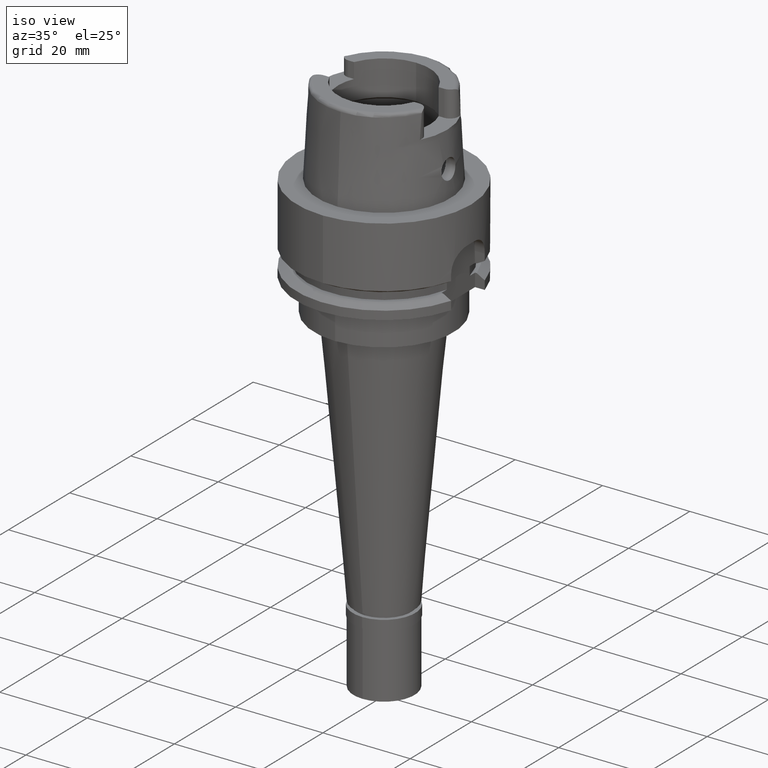
[diagram: clean part render]
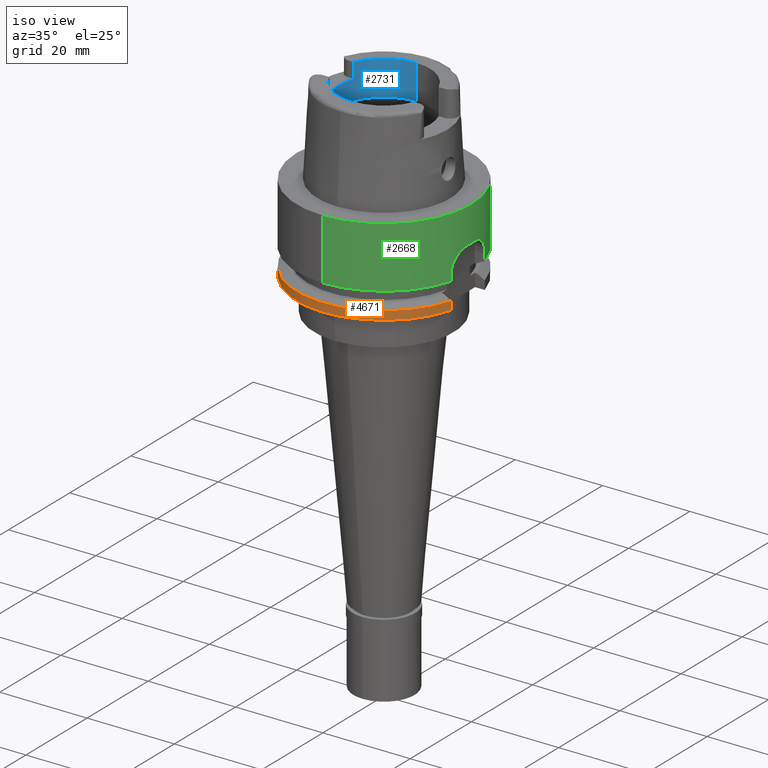
[diagram: same view with three faces highlighted in distinct colors, each labeled with its STEP entity id]
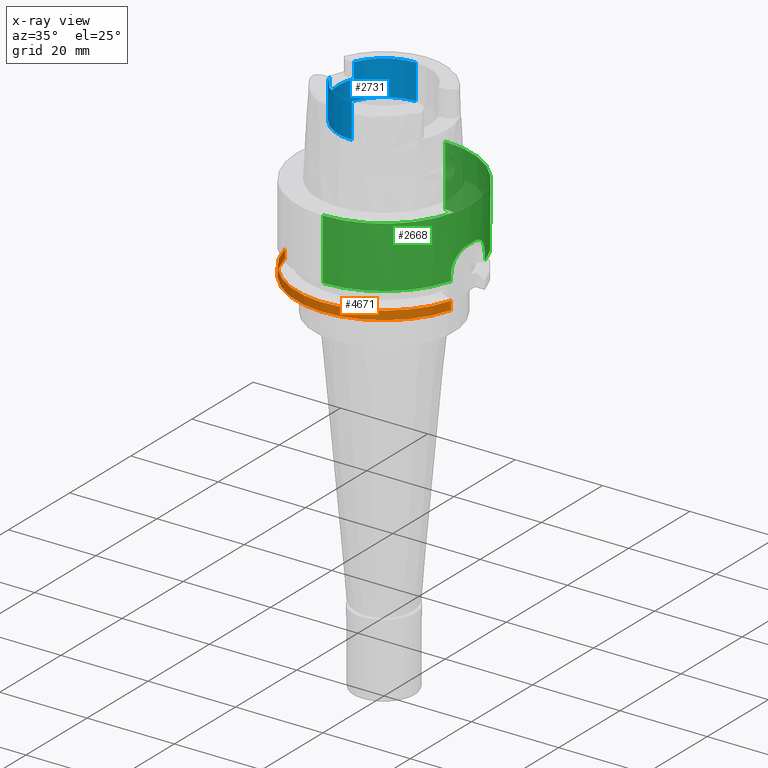
[diagram: x-ray of the same camera — body ghosted, the three highlighted faces saturated]
A machine part, iso view with three faces highlighted in distinct colors.
The next image is the same camera in x-ray (body ghosted, the three faces saturated) — at least one of them is partly hidden behind the body in this view.
Their STEP definitions:

[orange] entity #4671 — the highlighted cylindrical surface (partial cylindrical patch) has radius 20 mm, axis along (0, 0, -1).
#34 = CIRCLE ( 'NONE', #1382, 20.00000000000000355 ) ;
#233 = DIRECTION ( 'NONE',  ( 0.0000000000000000000, 0.0000000000000000000, -1.000000000000000000 ) ) ;
#630 = ORIENTED_EDGE ( 'NONE', *, *, #1420, .T. ) ;
#983 = VERTEX_POINT ( 'NONE', #2660 ) ;
#1083 = ORIENTED_EDGE ( 'NONE', *, *, #1352, .T. ) ;
#1172 = VERTEX_POINT ( 'NONE', #4121 ) ;
#1352 = EDGE_CURVE ( 'NONE', #983, #1172, #4506, .T. ) ;
#1354 = CARTESIAN_POINT ( 'NONE',  ( 19.22888438492999796, -5.500000482831000959, -18.02072998819999938 ) ) ;
#1361 = LINE ( 'NONE', #2976, #2925 ) ;
#1378 = DIRECTION ( 'NONE',  ( 6.977523736092768769E-08, 2.439442512100919785E-07, -0.9999999999999678035 ) ) ;
#1382 = AXIS2_PLACEMENT_3D ( 'NONE', #2723, #233, #4763 ) ;
#1420 = EDGE_CURVE ( 'NONE', #1584, #1720, #34, .T. ) ;
#1518 = CARTESIAN_POINT ( 'NONE',  ( -19.48717526991000071, -4.499999999998999911, -18.02072594216000212 ) ) ;
#1584 = VERTEX_POINT ( 'NONE', #4087 ) ;
#1630 = AXIS2_PLACEMENT_3D ( 'NONE', #4513, #1681, #3302 ) ;
#1640 = EDGE_CURVE ( 'NONE', #1584, #1172, #1749, .T. ) ;
#1681 = DIRECTION ( 'NONE',  ( 0.0000000000000000000, 0.0000000000000000000, -1.000000000000000000 ) ) ;
#1720 = VERTEX_POINT ( 'NONE', #1518 ) ;
#1749 = LINE ( 'NONE', #1354, #4427 ) ;
#1851 = ORIENTED_EDGE ( 'NONE', *, *, #1640, .F. ) ;
#2015 = ORIENTED_EDGE ( 'NONE', *, *, #4002, .F. ) ;
#2660 = CARTESIAN_POINT ( 'NONE',  ( -19.48717526991000071, -4.500000000000000000, -20.00000000000000000 ) ) ;
#2723 = CARTESIAN_POINT ( 'NONE',  ( 0.0000000000000000000, 1.010206699502999904E-14, -18.02072594216000212 ) ) ;
#2921 = CARTESIAN_POINT ( 'NONE',  ( 0.0000000000000000000, 1.543667290324999758E-14, -20.00000000000000000 ) ) ;
#2925 = VECTOR ( 'NONE', #4584, 1000.000000000000000 ) ;
#2976 = CARTESIAN_POINT ( 'NONE',  ( -19.48717526991000071, -4.500000000000000000, -20.00000000000000000 ) ) ;
#3037 = EDGE_LOOP ( 'NONE', ( #2015, #1083, #1851, #630 ) ) ;
#3302 = DIRECTION ( 'NONE',  ( 0.0000000000000000000, -1.000000000000000000, 0.0000000000000000000 ) ) ;
#3348 = FACE_OUTER_BOUND ( 'NONE', #3037, .T. ) ;
#3700 = CYLINDRICAL_SURFACE ( 'NONE', #1630, 20.00000000000000000 ) ;
#4002 = EDGE_CURVE ( 'NONE', #983, #1720, #1361, .T. ) ;
#4087 = CARTESIAN_POINT ( 'NONE',  ( 19.22888452303000051, -5.499999999998999911, -18.02072594216000212 ) ) ;
#4121 = CARTESIAN_POINT ( 'NONE',  ( 19.22888452303000051, -5.500000000000000000, -20.00000000000000000 ) ) ;
#4319 = DIRECTION ( 'NONE',  ( 0.0000000000000000000, -1.000000000000000000, 0.0000000000000000000 ) ) ;
#4427 = VECTOR ( 'NONE', #1378, 1000.000000000000000 ) ;
#4506 = CIRCLE ( 'NONE', #5176, 20.00000000000000000 ) ;
#4513 = CARTESIAN_POINT ( 'NONE',  ( 0.0000000000000000000, 1.543667290324999758E-14, 26.05000000000000071 ) ) ;
#4536 = DIRECTION ( 'NONE',  ( 0.0000000000000000000, 0.0000000000000000000, 1.000000000000000000 ) ) ;
#4584 = DIRECTION ( 'NONE',  ( 2.871932698541000019E-13, 1.135310894891999952E-13, 1.000000000000000000 ) ) ;
#4671 = ADVANCED_FACE ( 'NONE', ( #3348 ), #3700, .T. ) ;
#4763 = DIRECTION ( 'NONE',  ( 0.9614442261514726251, -0.2749999999999924727, 0.0000000000000000000 ) ) ;
#5176 = AXIS2_PLACEMENT_3D ( 'NONE', #2921, #4536, #4319 ) ;

[blue] entity #2731 — the highlighted cylindrical surface (partial cylindrical patch) has radius 10.5 mm, axis along (0, 0, -1).
#95 = LINE ( 'NONE', #3651, #3540 ) ;
#160 = EDGE_CURVE ( 'NONE', #1052, #1427, #1665, .T. ) ;
#237 = VECTOR ( 'NONE', #4203, 1000.000000000000000 ) ;
#251 = ORIENTED_EDGE ( 'NONE', *, *, #2397, .T. ) ;
#355 = AXIS2_PLACEMENT_3D ( 'NONE', #1373, #4911, #1745 ) ;
#566 = CYLINDRICAL_SURFACE ( 'NONE', #648, 10.50000000000000000 ) ;
#648 = AXIS2_PLACEMENT_3D ( 'NONE', #4224, #3376, #4979 ) ;
#774 = EDGE_CURVE ( 'NONE', #2619, #1611, #95, .T. ) ;
#813 = CIRCLE ( 'NONE', #3352, 10.50000000000000000 ) ;
#846 = CARTESIAN_POINT ( 'NONE',  ( -9.697905701747998819, -4.025000000000000355, 20.00000000000000000 ) ) ;
#920 = EDGE_CURVE ( 'NONE', #2263, #2170, #3784, .T. ) ;
#954 = ORIENTED_EDGE ( 'NONE', *, *, #4523, .T. ) ;
#1052 = VERTEX_POINT ( 'NONE', #1488 ) ;
#1077 = CIRCLE ( 'NONE', #3275, 10.49999999999999822 ) ;
#1106 = ORIENTED_EDGE ( 'NONE', *, *, #920, .F. ) ;
#1272 = CARTESIAN_POINT ( 'NONE',  ( -9.697905701747998819, 4.025000000000000355, 16.50000000000000000 ) ) ;
#1299 = CARTESIAN_POINT ( 'NONE',  ( 0.0000000000000000000, -10.50000000000000000, 11.99735026918999914 ) ) ;
#1363 = DIRECTION ( 'NONE',  ( 0.0000000000000000000, 4.506013014787999900E-14, 1.000000000000000000 ) ) ;
#1373 = CARTESIAN_POINT ( 'NONE',  ( 0.0000000000000000000, 1.543667290324999758E-14, 20.00000000000000000 ) ) ;
#1412 = LINE ( 'NONE', #3031, #4870 ) ;
#1427 = VERTEX_POINT ( 'NONE', #1857 ) ;
#1458 = CARTESIAN_POINT ( 'NONE',  ( 0.0000000000000000000, 1.363617650911000050E-14, 11.99735026918999914 ) ) ;
#1488 = CARTESIAN_POINT ( 'NONE',  ( 0.0000000000000000000, -10.50000000000000000, 11.99735026918999914 ) ) ;
#1544 = DIRECTION ( 'NONE',  ( 0.0000000000000000000, 0.0000000000000000000, 1.000000000000000000 ) ) ;
#1611 = VERTEX_POINT ( 'NONE', #4037 ) ;
#1665 = LINE ( 'NONE', #1299, #5051 ) ;
#1724 = CARTESIAN_POINT ( 'NONE',  ( 0.0000000000000000000, 10.50000000000000000, 11.99735026918999914 ) ) ;
#1745 = DIRECTION ( 'NONE',  ( 0.0000000000000000000, 1.000000000000000000, 0.0000000000000000000 ) ) ;
#1857 = CARTESIAN_POINT ( 'NONE',  ( 0.0000000000000000000, -10.50000000000000000, 20.00000000000000000 ) ) ;
#1990 = VERTEX_POINT ( 'NONE', #1724 ) ;
#2130 = CARTESIAN_POINT ( 'NONE',  ( 0.0000000000000000000, 1.543667290324999758E-14, 16.50000000000000000 ) ) ;
#2170 = VERTEX_POINT ( 'NONE', #2798 ) ;
#2263 = VERTEX_POINT ( 'NONE', #846 ) ;
#2397 = EDGE_CURVE ( 'NONE', #4569, #1611, #3146, .T. ) ;
#2414 = CIRCLE ( 'NONE', #4686, 10.49999999999999822 ) ;
#2454 = DIRECTION ( 'NONE',  ( 0.0000000000000000000, 0.0000000000000000000, 1.000000000000000000 ) ) ;
#2581 = CARTESIAN_POINT ( 'NONE',  ( -9.697905701747998819, -4.025000000000000355, 20.00000000000000000 ) ) ;
#2619 = VERTEX_POINT ( 'NONE', #1272 ) ;
#2731 = ADVANCED_FACE ( 'NONE', ( #4639 ), #566, .F. ) ;
#2774 = EDGE_CURVE ( 'NONE', #2619, #2170, #1077, .T. ) ;
#2798 = CARTESIAN_POINT ( 'NONE',  ( -9.697905701747998819, -4.025000000000000355, 16.50000000000000000 ) ) ;
#2811 = EDGE_CURVE ( 'NONE', #1990, #4569, #1412, .T. ) ;
#3006 = DIRECTION ( 'NONE',  ( 0.0000000000000000000, 0.0000000000000000000, 1.000000000000000000 ) ) ;
#3023 = ORIENTED_EDGE ( 'NONE', *, *, #2811, .T. ) ;
#3031 = CARTESIAN_POINT ( 'NONE',  ( 0.0000000000000000000, 10.50000000000000000, 11.99735026918999914 ) ) ;
#3051 = DIRECTION ( 'NONE',  ( 0.0000000000000000000, 0.0000000000000000000, -1.000000000000000000 ) ) ;
#3146 = CIRCLE ( 'NONE', #355, 10.50000000000000000 ) ;
#3172 = ORIENTED_EDGE ( 'NONE', *, *, #3822, .T. ) ;
#3275 = AXIS2_PLACEMENT_3D ( 'NONE', #2130, #3006, #3351 ) ;
#3351 = DIRECTION ( 'NONE',  ( -0.9236100668331782559, 0.3833333333332911153, 0.0000000000000000000 ) ) ;
#3352 = AXIS2_PLACEMENT_3D ( 'NONE', #1458, #3051, #4269 ) ;
#3376 = DIRECTION ( 'NONE',  ( 0.0000000000000000000, 0.0000000000000000000, -1.000000000000000000 ) ) ;
#3540 = VECTOR ( 'NONE', #2454, 1000.000000000000000 ) ;
#3619 = DIRECTION ( 'NONE',  ( -0.9236100668331782559, -0.3833333333332911153, 0.0000000000000000000 ) ) ;
#3651 = CARTESIAN_POINT ( 'NONE',  ( -9.697905701747998819, 4.025000000000000355, 16.50000000000000000 ) ) ;
#3784 = LINE ( 'NONE', #2581, #237 ) ;
#3822 = EDGE_CURVE ( 'NONE', #1052, #1990, #813, .T. ) ;
#4037 = CARTESIAN_POINT ( 'NONE',  ( -9.697905701747998819, 4.025000000000000355, 20.00000000000000000 ) ) ;
#4071 = CARTESIAN_POINT ( 'NONE',  ( 0.0000000000000000000, 10.50000000000000000, 20.00000000000000000 ) ) ;
#4104 = EDGE_LOOP ( 'NONE', ( #1106, #954, #4886, #3172, #3023, #251, #4759, #4491 ) ) ;
#4203 = DIRECTION ( 'NONE',  ( -1.015061051086000057E-14, 0.0000000000000000000, -1.000000000000000000 ) ) ;
#4224 = CARTESIAN_POINT ( 'NONE',  ( 0.0000000000000000000, 1.543667290324999758E-14, 26.05000000000000071 ) ) ;
#4269 = DIRECTION ( 'NONE',  ( 0.0000000000000000000, -1.000000000000000000, 0.0000000000000000000 ) ) ;
#4491 = ORIENTED_EDGE ( 'NONE', *, *, #2774, .T. ) ;
#4523 = EDGE_CURVE ( 'NONE', #2263, #1427, #2414, .T. ) ;
#4569 = VERTEX_POINT ( 'NONE', #4071 ) ;
#4639 = FACE_OUTER_BOUND ( 'NONE', #4104, .T. ) ;
#4686 = AXIS2_PLACEMENT_3D ( 'NONE', #4772, #1544, #3619 ) ;
#4759 = ORIENTED_EDGE ( 'NONE', *, *, #774, .F. ) ;
#4772 = CARTESIAN_POINT ( 'NONE',  ( 0.0000000000000000000, 1.543667290324999758E-14, 20.00000000000000000 ) ) ;
#4834 = DIRECTION ( 'NONE',  ( 0.0000000000000000000, -4.506013014787999900E-14, 1.000000000000000000 ) ) ;
#4870 = VECTOR ( 'NONE', #1363, 1000.000000000000000 ) ;
#4886 = ORIENTED_EDGE ( 'NONE', *, *, #160, .F. ) ;
#4911 = DIRECTION ( 'NONE',  ( 0.0000000000000000000, 0.0000000000000000000, 1.000000000000000000 ) ) ;
#4979 = DIRECTION ( 'NONE',  ( 0.0000000000000000000, -1.000000000000000000, 0.0000000000000000000 ) ) ;
#5051 = VECTOR ( 'NONE', #4834, 1000.000000000000000 ) ;

[green] entity #2668 — the highlighted cylindrical surface (partial cylindrical patch) has radius 20 mm, axis along (0, 0, -1).
#3 = CARTESIAN_POINT ( 'NONE',  ( 19.37438819454251515, 4.968981331610065943, -10.35901678339997645 ) ) ;
#5 = CARTESIAN_POINT ( 'NONE',  ( 19.32378822081918557, -5.157015763332991831, -10.77685397598820494 ) ) ;
#35 = CARTESIAN_POINT ( 'NONE',  ( 19.30814873047946278, 5.215510626097160873, -10.92456478975120504 ) ) ;
#55 = CARTESIAN_POINT ( 'NONE',  ( 19.64341734775709369, 3.759157193626918581, -8.942060455816395859 ) ) ;
#56 = CARTESIAN_POINT ( 'NONE',  ( 19.22888455207999669, 5.499999898428999501, -13.97927490900000080 ) ) ;
#108 = LINE ( 'NONE', #1286, #2719 ) ;
#165 = CARTESIAN_POINT ( 'NONE',  ( 19.75006768187282447, -3.152300324579869528, -8.547393473213741544 ) ) ;
#191 = CARTESIAN_POINT ( 'NONE',  ( 19.69786298772580579, -3.463279942955271640, -8.734041853009086864 ) ) ;
#219 = AXIS2_PLACEMENT_3D ( 'NONE', #834, #2844, #4072 ) ;
#252 = EDGE_CURVE ( 'NONE', #2816, #3621, #4298, .T. ) ;
#294 = CARTESIAN_POINT ( 'NONE',  ( 19.97498435543999662, 1.000000000000000000, -8.000000000000000000 ) ) ;
#319 = CARTESIAN_POINT ( 'NONE',  ( 19.60629991882707301, -3.947946776223751009, -9.099636447453219645 ) ) ;
#341 = DIRECTION ( 'NONE',  ( 0.9614442261514726251, 0.2749999999999924727, 0.0000000000000000000 ) ) ;
#347 = CARTESIAN_POINT ( 'NONE',  ( 19.55880979920604190, -4.177717557293585848, -9.313760926475668001 ) ) ;
#369 = EDGE_CURVE ( 'NONE', #3621, #3684, #4986, .T. ) ;
#373 = CARTESIAN_POINT ( 'NONE',  ( 19.54717881154443759, 4.231843806285925602, -9.368656200124942046 ) ) ;
#387 = CARTESIAN_POINT ( 'NONE',  ( 0.0000000000000000000, 1.543667290324999758E-14, -8.000000000000000000 ) ) ;
#400 = CARTESIAN_POINT ( 'NONE',  ( 19.31927554125320867, 5.173908272951318388, -10.81818178498428473 ) ) ;
#402 = CARTESIAN_POINT ( 'NONE',  ( 19.22888452303000761, -5.499999999999999112, -11.94439189503790466 ) ) ;
#428 = CARTESIAN_POINT ( 'NONE',  ( 19.94750265054872429, 1.548946625353125217, -7.999999999999998224 ) ) ;
#466 = CYLINDRICAL_SURFACE ( 'NONE', #219, 20.00000000000000000 ) ;
#472 = ORIENTED_EDGE ( 'NONE', *, *, #2096, .T. ) ;
#537 = CIRCLE ( 'NONE', #4846, 20.00000000000000355 ) ;
#548 = DIRECTION ( 'NONE',  ( 0.0000000000000000000, 0.0000000000000000000, -1.000000000000000000 ) ) ;
#565 = CARTESIAN_POINT ( 'NONE',  ( 19.79924970797953421, -2.829005952010215541, -8.386433423952727395 ) ) ;
#574 = DIRECTION ( 'NONE',  ( 0.0000000000000000000, 1.000000000000000000, 0.0000000000000000000 ) ) ;
#591 = CARTESIAN_POINT ( 'NONE',  ( 19.82412897297784227, -2.646045169958980647, -8.311778255061128107 ) ) ;
#666 = CARTESIAN_POINT ( 'NONE',  ( 19.97498435543999662, -1.000000000000000000, -8.000000000000000000 ) ) ;
#749 = VECTOR ( 'NONE', #2191, 1000.000000000000000 ) ;
#766 = CARTESIAN_POINT ( 'NONE',  ( 19.73181176401502412, 3.269800688285884771, -8.611531494186243307 ) ) ;
#795 = CARTESIAN_POINT ( 'NONE',  ( 19.80271555437556685, 2.802257396458175620, -8.376496063767739031 ) ) ;
#797 = CARTESIAN_POINT ( 'NONE',  ( 19.33343987542199116, -5.120819323139696344, -10.69159904264108008 ) ) ;
#801 = EDGE_CURVE ( 'NONE', #2895, #2930, #1849, .T. ) ;
#822 = CARTESIAN_POINT ( 'NONE',  ( 19.55058958275470360, 4.216034114112235720, -9.352421095808553630 ) ) ;
#834 = CARTESIAN_POINT ( 'NONE',  ( 0.0000000000000000000, 1.543667290324999758E-14, 26.05000000000000071 ) ) ;
#848 = CARTESIAN_POINT ( 'NONE',  ( 19.66595259486028269, 3.639708197369829534, -8.852604972239468850 ) ) ;
#948 = CARTESIAN_POINT ( 'NONE',  ( 0.0000000000000000000, -20.00000000000000000, 2.842170943039999687E-14 ) ) ;
#996 = CARTESIAN_POINT ( 'NONE',  ( 19.88657340472432722, -2.128521744545384564, -8.141174127915954628 ) ) ;
#1025 = ORIENTED_EDGE ( 'NONE', *, *, #4977, .F. ) ;
#1100 = CARTESIAN_POINT ( 'NONE',  ( 19.22888455207999669, 5.499999898428999501, -13.97927490900000080 ) ) ;
#1176 = CARTESIAN_POINT ( 'NONE',  ( 0.0000000000000000000, -20.00000000000000000, 4.263256414560999963E-14 ) ) ;
#1179 = CARTESIAN_POINT ( 'NONE',  ( 19.25965273699067737, 5.393015374543157492, -11.51384204047051973 ) ) ;
#1190 = CARTESIAN_POINT ( 'NONE',  ( 19.22888452303000051, -5.500000000000000000, -12.50000000000000000 ) ) ;
#1193 = ORIENTED_EDGE ( 'NONE', *, *, #369, .T. ) ;
#1206 = CARTESIAN_POINT ( 'NONE',  ( 19.53037130707301117, 4.309204805725075360, -9.449976948277296174 ) ) ;
#1208 = CARTESIAN_POINT ( 'NONE',  ( 19.56749878760233230, -4.136808821677538717, -9.273401578788352140 ) ) ;
#1233 = CARTESIAN_POINT ( 'NONE',  ( 19.22888452303000051, 5.499999999999999112, -12.22477767450763508 ) ) ;
#1235 = LINE ( 'NONE', #4765, #3149 ) ;
#1259 = CARTESIAN_POINT ( 'NONE',  ( 19.45403425829189104, 4.645501968449847752, -9.856618486522032541 ) ) ;
#1284 = CARTESIAN_POINT ( 'NONE',  ( 19.26926780385338844, 5.358523449145703665, -11.37062589925078626 ) ) ;
#1286 = CARTESIAN_POINT ( 'NONE',  ( 0.0000000000000000000, 20.00000000000000000, 2.842170943039999687E-14 ) ) ;
#1419 = CARTESIAN_POINT ( 'NONE',  ( 0.0000000000000000000, 1.543667290324999758E-14, 4.263256414560999963E-14 ) ) ;
#1482 = CARTESIAN_POINT ( 'NONE',  ( 19.86177198028481428, -2.346345507704530764, -8.205458714641451934 ) ) ;
#1506 = CARTESIAN_POINT ( 'NONE',  ( 19.58358607571208410, -4.059677680234496933, -9.200102150995521200 ) ) ;
#1565 = CARTESIAN_POINT ( 'NONE',  ( 19.69011979538656121, -3.507041824432302501, -8.763022894637767735 ) ) ;
#1580 = EDGE_CURVE ( 'NONE', #2567, #2930, #2737, .T. ) ;
#1618 = CARTESIAN_POINT ( 'NONE',  ( 19.76286317223778255, 3.073239668982341577, -8.505350716737437367 ) ) ;
#1671 = CARTESIAN_POINT ( 'NONE',  ( 19.71035955465800527, 3.396378701076609552, -8.688318090813437422 ) ) ;
#1761 = DIRECTION ( 'NONE',  ( 0.0000000000000000000, 0.0000000000000000000, 1.000000000000000000 ) ) ;
#1811 = CARTESIAN_POINT ( 'NONE',  ( 19.82047669593163519, -2.673243496814583953, -8.322638189075524551 ) ) ;
#1835 = CARTESIAN_POINT ( 'NONE',  ( 19.84876205538503058, -2.455396895395192125, -8.240630355209964009 ) ) ;
#1849 = CIRCLE ( 'NONE', #4219, 20.00000000000000355 ) ;
#1863 = ORIENTED_EDGE ( 'NONE', *, *, #5086, .F. ) ;
#1911 = ORIENTED_EDGE ( 'NONE', *, *, #252, .T. ) ;
#1914 = CARTESIAN_POINT ( 'NONE',  ( 19.56100790868513428, -4.167408501126094400, -9.303510949895644089 ) ) ;
#1944 = CARTESIAN_POINT ( 'NONE',  ( 19.56297054243317746, -4.158183768741362307, -9.294379057495527618 ) ) ;
#1972 = CARTESIAN_POINT ( 'NONE',  ( 19.63055863444332161, -3.825429343080176015, -8.995945353307421399 ) ) ;
#1998 = DIRECTION ( 'NONE',  ( -9.335120829406403131E-08, -3.263687556539141605E-07, -0.9999999999999423794 ) ) ;
#2023 = CARTESIAN_POINT ( 'NONE',  ( 19.34371990524743268, 5.082188777407422364, -10.59321086055394368 ) ) ;
#2025 = CARTESIAN_POINT ( 'NONE',  ( 19.69287179657276710, -3.491531764190564768, -8.752698147519648586 ) ) ;
#2073 = CARTESIAN_POINT ( 'NONE',  ( 19.23657657652016795, 5.474683009936600619, -11.94180794608985252 ) ) ;
#2091 = ORIENTED_EDGE ( 'NONE', *, *, #1580, .F. ) ;
#2096 = EDGE_CURVE ( 'NONE', #4204, #5013, #537, .T. ) ;
#2179 = CARTESIAN_POINT ( 'NONE',  ( 19.81802915263665810, -2.691371042508007960, -8.329944904972130360 ) ) ;
#2191 = DIRECTION ( 'NONE',  ( 0.0000000000000000000, 4.549132851063000272E-14, -1.000000000000000000 ) ) ;
#2205 = CARTESIAN_POINT ( 'NONE',  ( 19.72232671852873409, -3.321156288970464221, -8.644641456641281252 ) ) ;
#2305 = CARTESIAN_POINT ( 'NONE',  ( 19.69250427264395853, -3.493603579767303291, -8.754076722270859534 ) ) ;
#2329 = CARTESIAN_POINT ( 'NONE',  ( 19.35553016788671599, -5.037776128391355357, -10.51239473278588932 ) ) ;
#2331 = LINE ( 'NONE', #1100, #2923 ) ;
#2355 = CARTESIAN_POINT ( 'NONE',  ( 19.50148624231626115, 4.439276188996609029, -9.596741149152316908 ) ) ;
#2357 = CARTESIAN_POINT ( 'NONE',  ( 19.26028250093624195, -5.395673741350208275, -11.35512993866811371 ) ) ;
#2365 = B_SPLINE_CURVE_WITH_KNOTS ( 'NONE', 3,
 ( #2701, #3804, #5102, #3855, #996, #1482, #1835, #3398, #591, #1811, #2179, #3101, #565, #3450, #165, #3004, #2205, #3830, #5052, #191, #3425, #4790, #3642, #2025, #2305, #1565, #3529, #4430, #1972, #319, #4350, #1506, #3157, #1208, #1944, #1914, #5129, #347, #2781, #3244, #3185, #3553, #2329, #5189, #2416, #797, #4734, #3127, #4039, #5, #3586, #2357, #402, #3978 ),
 .UNSPECIFIED., .F., .F.,
 ( 4, 2, 2, 1, 1, 1, 2, 2, 2, 2, 1, 1, 1, 1, 1, 2, 2, 2, 2, 2, 1, 1, 1, 2, 2, 2, 2, 2, 1, 1, 1, 2, 2, 4 ),
 ( 0.0000000000000000000, 0.1250000000000925093, 0.1875000000001387224, 0.2187500000001618428, 0.2343750000001735834, 0.2421875000001792733, 0.2460937500001820211, 0.2500000000001847411, 0.3125000000002320366, 0.3437500000002553513, 0.3593750000002669531, 0.3671875000002726708, 0.3710937500002751688, 0.3730468750002763345, 0.3740234375002770562, 0.3745117187502772782, 0.3750000000002774447, 0.4375000000002126077, 0.4687500000001800782, 0.4843750000001642020, 0.4921875000001564304, 0.4960937500001526557, 0.4980468750001506018, 0.4990234375001497136, 0.5000000000001487699, 0.6250000000000823785, 0.6875000000000491829, 0.7187500000000325295, 0.7343750000000237588, 0.7421875000000195399, 0.7460937500000179856, 0.7480468750000176525, 0.7500000000000173195, 1.000000000000000000 ),
 .UNSPECIFIED. ) ;
#2416 = CARTESIAN_POINT ( 'NONE',  ( 19.33826880039561047, -5.102721284852711925, -10.65105757695662270 ) ) ;
#2463 = CARTESIAN_POINT ( 'NONE',  ( 19.89329510128545664, 2.145013587834520674, -8.101754134636035332 ) ) ;
#2553 = CARTESIAN_POINT ( 'NONE',  ( 0.0000000000000000000, 20.00000000000000000, 2.842170943039999687E-14 ) ) ;
#2567 = VERTEX_POINT ( 'NONE', #3727 ) ;
#2629 = DIRECTION ( 'NONE',  ( 0.0000000000000000000, 0.0000000000000000000, 1.000000000000000000 ) ) ;
#2668 = ADVANCED_FACE ( 'NONE', ( #2924 ), #466, .T. ) ;
#2701 = CARTESIAN_POINT ( 'NONE',  ( 19.97498435543999662, -1.000000000000000000, -8.000000000000000000 ) ) ;
#2719 = VECTOR ( 'NONE', #3267, 1000.000000000000000 ) ;
#2737 = B_SPLINE_CURVE_WITH_KNOTS ( 'NONE', 3,
 ( #3264, #1233, #2073, #1179, #1284, #3211, #3183, #35, #4402, #2831, #400, #4476, #3611, #2023, #3, #4872, #1259, #4456, #2355, #4006, #1206, #2859, #373, #822, #4428, #2779, #2802, #55, #848, #1671, #766, #1618, #4892, #3292, #795, #3242, #2463, #428, #4502 ),
 .UNSPECIFIED., .F., .F.,
 ( 4, 2, 2, 1, 1, 1, 1, 2, 2, 2, 2, 2, 1, 1, 2, 2, 2, 2, 2, 1, 2, 2, 4 ),
 ( 0.0000000000000000000, 0.1249999999999510392, 0.1874999999999265032, 0.2187499999999142908, 0.2343749999999079348, 0.2421874999999051314, 0.2460937499999034106, 0.2480468749999029665, 0.2499999999999024669, 0.3749999999999019673, 0.4374999999999021338, 0.4687499999999019118, 0.4843749999999021338, 0.4921874999999025779, 0.4960937499999029665, 0.4999999999999032996, 0.5624999999999152900, 0.6249999999999273914, 0.6874999999999393818, 0.7187499999999454880, 0.7343749999999483746, 0.7499999999999512612, 1.000000000000000000 ),
 .UNSPECIFIED. ) ;
#2779 = CARTESIAN_POINT ( 'NONE',  ( 19.57636077434077393, 4.096058062432208935, -9.231008306331434099 ) ) ;
#2781 = CARTESIAN_POINT ( 'NONE',  ( 19.50258987356185969, -4.440814174074203535, -9.576490243884636655 ) ) ;
#2802 = CARTESIAN_POINT ( 'NONE',  ( 19.59870672098418609, 3.986864991692018023, -9.130946759011775882 ) ) ;
#2816 = VERTEX_POINT ( 'NONE', #2553 ) ;
#2831 = CARTESIAN_POINT ( 'NONE',  ( 19.31785018270852206, 5.179250434213138021, -10.83146020384358366 ) ) ;
#2844 = DIRECTION ( 'NONE',  ( 0.0000000000000000000, 0.0000000000000000000, -1.000000000000000000 ) ) ;
#2859 = CARTESIAN_POINT ( 'NONE',  ( 19.54208649520453278, 4.255394358955884471, -9.393024476889040741 ) ) ;
#2895 = VERTEX_POINT ( 'NONE', #666 ) ;
#2923 = VECTOR ( 'NONE', #3588, 1000.000000000000227 ) ;
#2924 = FACE_OUTER_BOUND ( 'NONE', #4316, .T. ) ;
#2930 = VERTEX_POINT ( 'NONE', #294 ) ;
#2944 = EDGE_CURVE ( 'NONE', #4204, #2567, #2331, .T. ) ;
#3004 = CARTESIAN_POINT ( 'NONE',  ( 19.73928629156426595, -3.219242459443588000, -8.584494034111612493 ) ) ;
#3101 = CARTESIAN_POINT ( 'NONE',  ( 19.81658212541204733, -2.702021647201545473, -8.334284272960474027 ) ) ;
#3127 = CARTESIAN_POINT ( 'NONE',  ( 19.32558386707967557, -5.150273171863361199, -10.76065550155922956 ) ) ;
#3149 = VECTOR ( 'NONE', #1998, 1000.000000000000114 ) ;
#3157 = CARTESIAN_POINT ( 'NONE',  ( 19.57635034363546112, -4.094674932752772278, -9.232753233935065751 ) ) ;
#3180 = CARTESIAN_POINT ( 'NONE',  ( 19.22888452303000051, -5.499999999998999911, -13.97927405783999966 ) ) ;
#3183 = CARTESIAN_POINT ( 'NONE',  ( 19.29594961439740075, 5.260844250046678106, -11.04907114761905795 ) ) ;
#3185 = CARTESIAN_POINT ( 'NONE',  ( 19.39626597440157596, -4.881159778159820384, -10.21778494986767782 ) ) ;
#3196 = ORIENTED_EDGE ( 'NONE', *, *, #4933, .T. ) ;
#3211 = CARTESIAN_POINT ( 'NONE',  ( 19.28657492420625985, 5.295314599949730194, -11.15618988822538782 ) ) ;
#3242 = CARTESIAN_POINT ( 'NONE',  ( 19.80730337054795953, 2.769524427650016385, -8.362323385757935768 ) ) ;
#3244 = CARTESIAN_POINT ( 'NONE',  ( 19.45508985667163060, -4.643627919327275144, -9.842632388975317781 ) ) ;
#3264 = CARTESIAN_POINT ( 'NONE',  ( 19.22888452303000051, 5.500000000000000000, -12.50000000000000000 ) ) ;
#3267 = DIRECTION ( 'NONE',  ( 0.0000000000000000000, -4.574547001069000145E-14, -1.000000000000000000 ) ) ;
#3292 = CARTESIAN_POINT ( 'NONE',  ( 19.79292853787436712, 2.870973961517776285, -8.407216977344923237 ) ) ;
#3297 = AXIS2_PLACEMENT_3D ( 'NONE', #1419, #548, #574 ) ;
#3398 = CARTESIAN_POINT ( 'NONE',  ( 19.83251768747857469, -2.582538949086697233, -8.287137072048723851 ) ) ;
#3425 = CARTESIAN_POINT ( 'NONE',  ( 19.69518156564609157, -3.478484172201601332, -8.744049556565625991 ) ) ;
#3450 = CARTESIAN_POINT ( 'NONE',  ( 19.78083687765314735, -2.955267636968208489, -8.444274585361519314 ) ) ;
#3503 = DIRECTION ( 'NONE',  ( 0.0000000000000000000, -1.000000000000000000, 0.0000000000000000000 ) ) ;
#3526 = ORIENTED_EDGE ( 'NONE', *, *, #801, .T. ) ;
#3529 = CARTESIAN_POINT ( 'NONE',  ( 19.67776081537650512, -3.576150304528646018, -8.807391548428219252 ) ) ;
#3553 = CARTESIAN_POINT ( 'NONE',  ( 19.37872903748909437, -4.949291390665454315, -10.33899547509192907 ) ) ;
#3586 = CARTESIAN_POINT ( 'NONE',  ( 19.32356905015351245, -5.157838959567653703, -10.77883802536317148 ) ) ;
#3588 = DIRECTION ( 'NONE',  ( -1.963880633277989795E-08, 6.866245508930962446E-08, 0.9999999999999973355 ) ) ;
#3611 = CARTESIAN_POINT ( 'NONE',  ( 19.32083712209427873, 5.168052201873403639, -10.80372376177877314 ) ) ;
#3621 = VERTEX_POINT ( 'NONE', #1176 ) ;
#3642 = CARTESIAN_POINT ( 'NONE',  ( 19.69325742030598292, -3.489356284146566622, -8.751252609717051101 ) ) ;
#3684 = VERTEX_POINT ( 'NONE', #4034 ) ;
#3727 = CARTESIAN_POINT ( 'NONE',  ( 19.22888452303000051, 5.500000000000000000, -12.50000000000000000 ) ) ;
#3738 = VERTEX_POINT ( 'NONE', #3180 ) ;
#3804 = CARTESIAN_POINT ( 'NONE',  ( 19.96141059528141781, -1.271135646755005677, -8.000000000000000000 ) ) ;
#3830 = CARTESIAN_POINT ( 'NONE',  ( 19.71365006011778576, -3.372487405428365115, -8.675839264552720920 ) ) ;
#3855 = CARTESIAN_POINT ( 'NONE',  ( 19.90148312053728219, -1.983686740089123823, -8.106400823173725456 ) ) ;
#3978 = CARTESIAN_POINT ( 'NONE',  ( 19.22888452303000051, -5.500000000000000000, -12.50000000000000000 ) ) ;
#4006 = CARTESIAN_POINT ( 'NONE',  ( 19.52061580295159970, 4.353396961917777475, -9.498898205557379626 ) ) ;
#4034 = CARTESIAN_POINT ( 'NONE',  ( 0.0000000000000000000, -20.00000000000000000, -13.97927405783999966 ) ) ;
#4039 = CARTESIAN_POINT ( 'NONE',  ( 19.32450405234231638, -5.154327359260659769, -10.77038256577791842 ) ) ;
#4061 = DIRECTION ( 'NONE',  ( 0.0000000000000000000, 0.0000000000000000000, 1.000000000000000000 ) ) ;
#4072 = DIRECTION ( 'NONE',  ( 0.0000000000000000000, -1.000000000000000000, 0.0000000000000000000 ) ) ;
#4134 = ORIENTED_EDGE ( 'NONE', *, *, #4967, .F. ) ;
#4204 = VERTEX_POINT ( 'NONE', #56 ) ;
#4219 = AXIS2_PLACEMENT_3D ( 'NONE', #387, #1761, #5010 ) ;
#4250 = CIRCLE ( 'NONE', #5085, 20.00000000000000000 ) ;
#4298 = CIRCLE ( 'NONE', #3297, 20.00000000000000000 ) ;
#4316 = EDGE_LOOP ( 'NONE', ( #3526, #2091, #4623, #472, #1863, #1911, #1193, #3196, #1025, #4134 ) ) ;
#4350 = CARTESIAN_POINT ( 'NONE',  ( 19.59758911859629293, -3.991323908915184848, -9.137590959578149707 ) ) ;
#4402 = CARTESIAN_POINT ( 'NONE',  ( 19.31456378290192788, 5.191553160485575802, -10.86246611052810707 ) ) ;
#4428 = CARTESIAN_POINT ( 'NONE',  ( 19.55262815819665079, 4.206560231076517553, -9.342777017393709471 ) ) ;
#4430 = CARTESIAN_POINT ( 'NONE',  ( 19.64423286475271269, -3.753960927275207027, -8.940340451240164299 ) ) ;
#4456 = CARTESIAN_POINT ( 'NONE',  ( 19.48924179870268603, 4.493187827705320103, -9.661967863586884420 ) ) ;
#4476 = CARTESIAN_POINT ( 'NONE',  ( 19.32022953616849392, 5.170331358467291416, -10.80933174751684334 ) ) ;
#4495 = VERTEX_POINT ( 'NONE', #1190 ) ;
#4502 = CARTESIAN_POINT ( 'NONE',  ( 19.97498435543999662, 1.000000000000000000, -8.000000000000000000 ) ) ;
#4610 = CARTESIAN_POINT ( 'NONE',  ( 0.0000000000000000000, 1.047199923064999921E-14, -13.97927405783999966 ) ) ;
#4623 = ORIENTED_EDGE ( 'NONE', *, *, #2944, .F. ) ;
#4734 = CARTESIAN_POINT ( 'NONE',  ( 19.32814590696887436, -5.140661198078421812, -10.73782006796878186 ) ) ;
#4765 = CARTESIAN_POINT ( 'NONE',  ( 19.22888452303000051, -5.500000000000000000, -12.50000000000000000 ) ) ;
#4790 = CARTESIAN_POINT ( 'NONE',  ( 19.69383547139038981, -3.486093573305517168, -8.749086689143920736 ) ) ;
#4846 = AXIS2_PLACEMENT_3D ( 'NONE', #5071, #4061, #341 ) ;
#4872 = CARTESIAN_POINT ( 'NONE',  ( 19.43259695192461578, 4.734475810383234062, -9.984975962784744752 ) ) ;
#4892 = CARTESIAN_POINT ( 'NONE',  ( 19.77810714989596974, 2.973287712629881785, -8.454509563930937333 ) ) ;
#4933 = EDGE_CURVE ( 'NONE', #3684, #3738, #4250, .T. ) ;
#4967 = EDGE_CURVE ( 'NONE', #2895, #4495, #2365, .T. ) ;
#4977 = EDGE_CURVE ( 'NONE', #4495, #3738, #1235, .T. ) ;
#4986 = LINE ( 'NONE', #948, #749 ) ;
#5010 = DIRECTION ( 'NONE',  ( 0.9987492177719088371, -0.04999999999999998890, 0.0000000000000000000 ) ) ;
#5013 = VERTEX_POINT ( 'NONE', #5157 ) ;
#5052 = CARTESIAN_POINT ( 'NONE',  ( 19.70318276615864761, -3.432931441242719650, -8.714291355451090126 ) ) ;
#5071 = CARTESIAN_POINT ( 'NONE',  ( 0.0000000000000000000, 1.047199923064999921E-14, -13.97927405783999966 ) ) ;
#5085 = AXIS2_PLACEMENT_3D ( 'NONE', #4610, #2629, #3503 ) ;
#5086 = EDGE_CURVE ( 'NONE', #2816, #5013, #108, .T. ) ;
#5102 = CARTESIAN_POINT ( 'NONE',  ( 19.94133856653591153, -1.553011090586176257, -8.024556776068822117 ) ) ;
#5129 = CARTESIAN_POINT ( 'NONE',  ( 19.55969460679819605, -4.173572332193474566, -9.309630505289558045 ) ) ;
#5157 = CARTESIAN_POINT ( 'NONE',  ( 0.0000000000000000000, 20.00000000000000000, -13.97927405783999966 ) ) ;
#5189 = CARTESIAN_POINT ( 'NONE',  ( 19.34831496731364453, -5.064985629941955558, -10.56880039146197525 ) ) ;